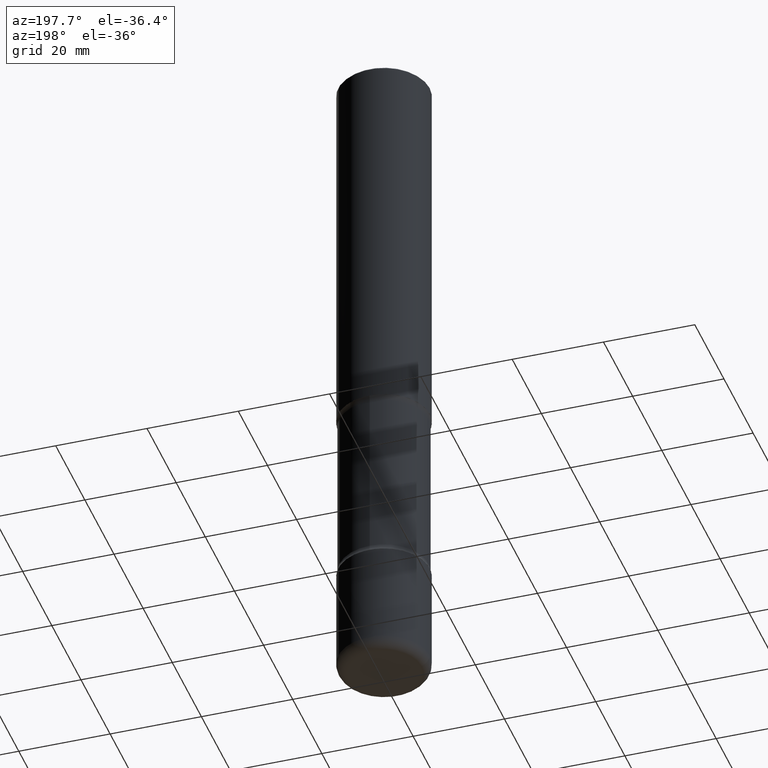
[diagram: clean part render]
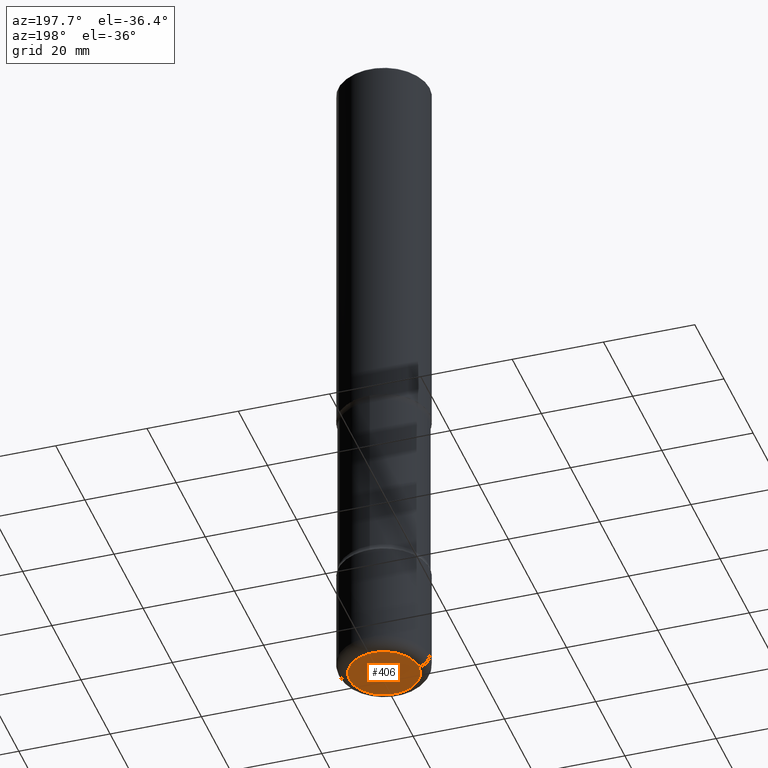
[diagram: same view with one face highlighted and labeled with its STEP entity id]
A machine part, auxiliary view. The second image highlights one B-rep face of the part: STEP entity #406.
In plain terms, the highlighted planar face has unit normal (0, -0, -1).
Its self-contained STEP definition (entity closure, byte-faithful):
#2 = AXIS2_PLACEMENT_3D ( 'NONE', #64, #502, #440 ) ;
#34 = CARTESIAN_POINT ( 'NONE',  ( 0.2992000000000003546, -2.270824547970193579E-14, -5.905500000000001748 ) ) ;
#39 = VERTEX_POINT ( 'NONE', #533 ) ;
#64 = CARTESIAN_POINT ( 'NONE',  ( -6.191979204648126414E-30, -4.218702904464554477E-14, -5.905500000000000860 ) ) ;
#87 = ORIENTED_EDGE ( 'NONE', *, *, #238, .F. ) ;
#103 = PLANE ( 'NONE',  #2 ) ;
#116 = DIRECTION ( 'NONE',  ( 1.000000000000000000, -6.982962677686266711E-15, 0.000000000000000000 ) ) ;
#122 = DIRECTION ( 'NONE',  ( -2.445468806185136597E-29, 3.491481338843145583E-15, 1.000000000000000000 ) ) ;
#129 = ORIENTED_EDGE ( 'NONE', *, *, #158, .F. ) ;
#140 = DIRECTION ( 'NONE',  ( 1.000000000000000000, -6.982962677686266711E-15, 0.000000000000000000 ) ) ;
#153 = DIRECTION ( 'NONE',  ( -2.445468806185136597E-29, 3.491481338843145583E-15, 1.000000000000000000 ) ) ;
#158 = EDGE_CURVE ( 'NONE', #39, #219, #249, .T. ) ;
#219 = VERTEX_POINT ( 'NONE', #34 ) ;
#238 = EDGE_CURVE ( 'NONE', #219, #39, #305, .T. ) ;
#249 = CIRCLE ( 'NONE', #399, 0.2992000000000003546 ) ;
#254 = CARTESIAN_POINT ( 'NONE',  ( 1.444171603492632719E-28, -2.061894304653820143E-14, -5.905500000000001748 ) ) ;
#305 = CIRCLE ( 'NONE', #509, 0.2992000000000003546 ) ;
#313 = EDGE_LOOP ( 'NONE', ( #87, #129 ) ) ;
#386 = CARTESIAN_POINT ( 'NONE',  ( 1.444171603492632719E-28, -2.061894304653820143E-14, -5.905500000000001748 ) ) ;
#399 = AXIS2_PLACEMENT_3D ( 'NONE', #386, #153, #140 ) ;
#406 = ADVANCED_FACE ( 'NONE', ( #494 ), #103, .T. ) ;
#440 = DIRECTION ( 'NONE',  ( -1.000000000000000000, 6.982962677686265922E-15, -4.876176775795935793E-29 ) ) ;
#494 = FACE_OUTER_BOUND ( 'NONE', #313, .T. ) ;
#502 = DIRECTION ( 'NONE',  ( 2.438088387897960049E-29, -3.491481338843145188E-15, -1.000000000000000000 ) ) ;
#509 = AXIS2_PLACEMENT_3D ( 'NONE', #254, #122, #116 ) ;
#533 = CARTESIAN_POINT ( 'NONE',  ( -0.2992000000000003546, -1.799229524523699924E-14, -5.905500000000001748 ) ) ;